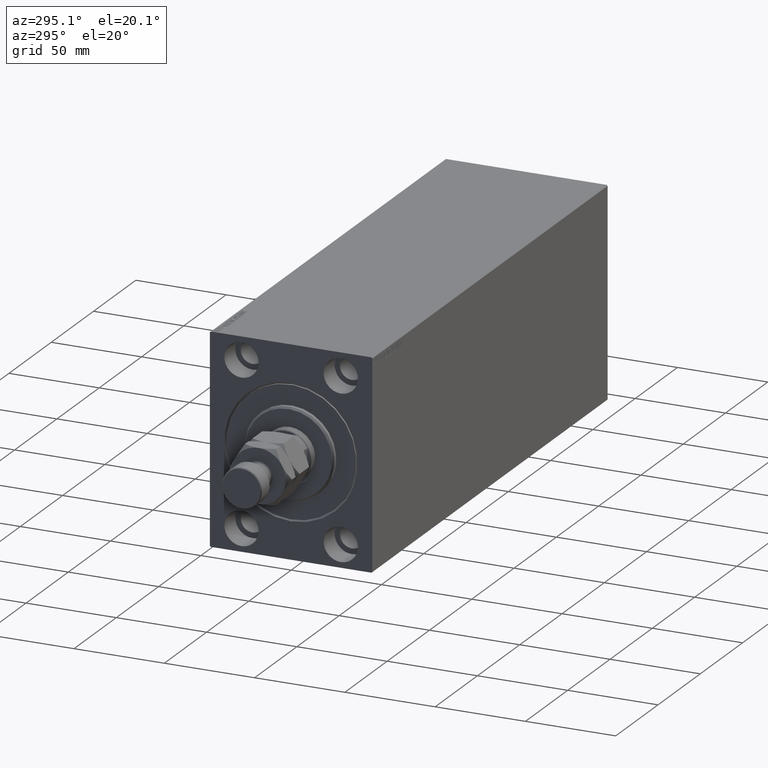
[diagram: clean part render]
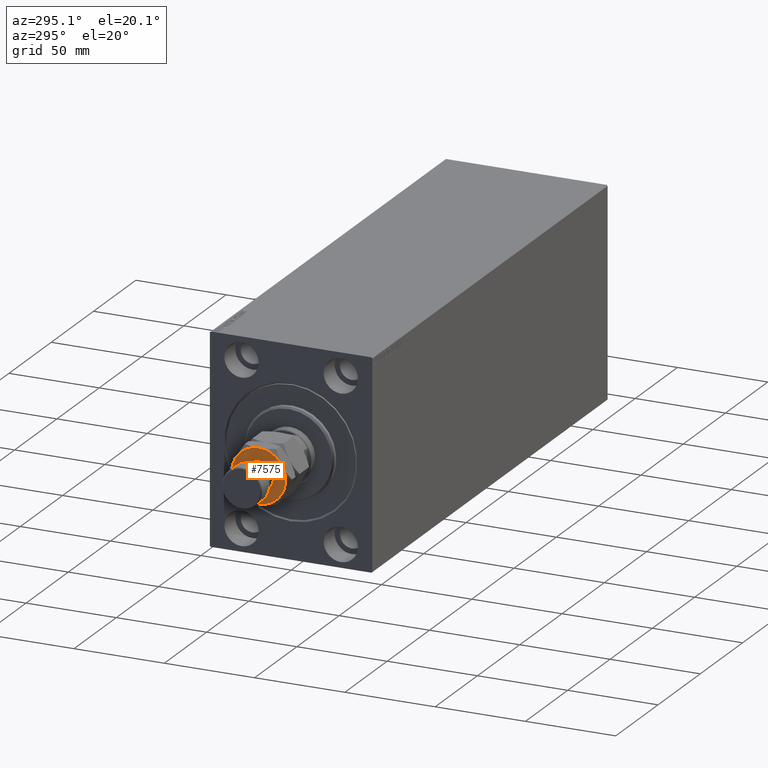
[diagram: same view with one face highlighted and labeled with its STEP entity id]
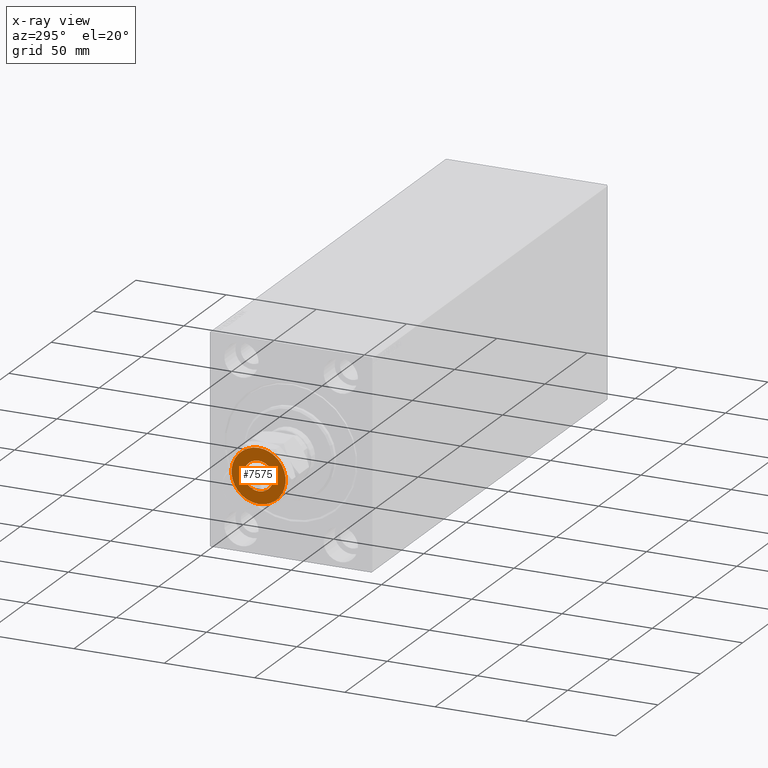
[diagram: x-ray of the same camera — body ghosted, the highlighted face saturated]
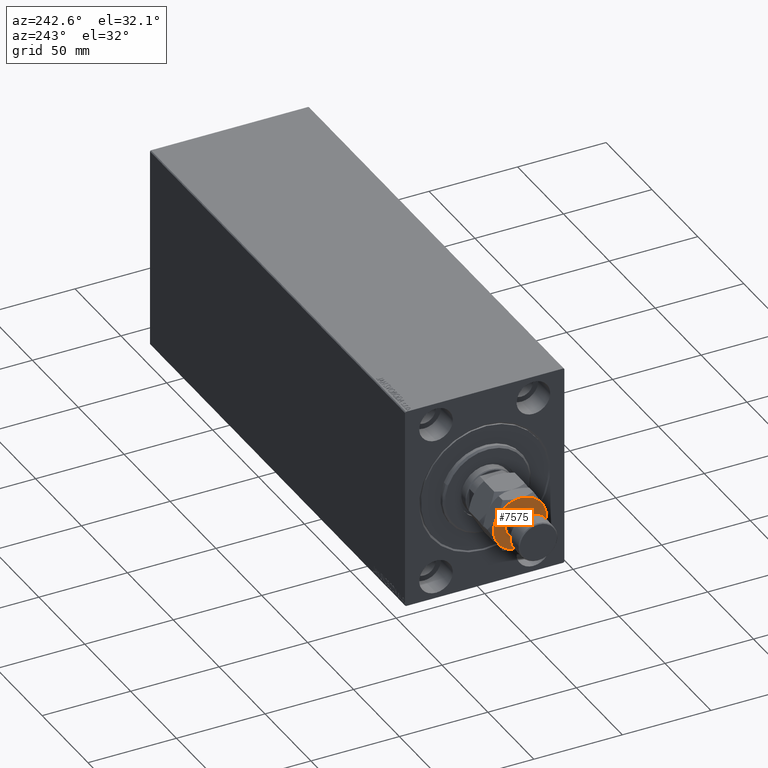
[diagram: same view with one face highlighted and labeled with its STEP entity id]
A machine part, auxiliary view. The second image highlights one B-rep face of the part: STEP entity #7575.
The next image is the same camera in x-ray: the body ghosted, the highlighted face saturated — about 0% of this face is hidden behind the body in this view.
A second angle (auxiliary view) of the same face is appended — the face is thin or edge-on in the first view.
In plain terms, the highlighted planar face has unit normal (-1, 0, 0).
Its self-contained STEP definition (entity closure, byte-faithful):
#321 = CIRCLE ( 'NONE', #20196, 14.99999999999999645 ) ;
#438 = CARTESIAN_POINT ( 'NONE',  ( 0.000000000000000000, 0.000000000000000000, 25.00000000000000000 ) ) ;
#530 = EDGE_LOOP ( 'NONE', ( #23678, #26504 ) ) ;
#1044 = CIRCLE ( 'NONE', #11329, 14.99999999999999645 ) ;
#1254 = VERTEX_POINT ( 'NONE', #42301 ) ;
#1564 = CARTESIAN_POINT ( 'NONE',  ( 0.000000000000000000, 0.000000000000000000, 25.00000000000000000 ) ) ;
#2749 = AXIS2_PLACEMENT_3D ( 'NONE', #32168, #4313, #14687 ) ;
#3465 = CARTESIAN_POINT ( 'NONE',  ( 8.200000000000001066, 0.000000000000000000, 25.00000000000000000 ) ) ;
#3591 = AXIS2_PLACEMENT_3D ( 'NONE', #1564, #29649, #15144 ) ;
#3680 = ORIENTED_EDGE ( 'NONE', *, *, #34946, .T. ) ;
#3728 = EDGE_CURVE ( 'NONE', #31048, #1254, #44014, .T. ) ;
#3746 = EDGE_CURVE ( 'NONE', #1254, #40505, #19794, .T. ) ;
#3958 = DIRECTION ( 'NONE',  ( 1.000000000000000000, 0.000000000000000000, 0.000000000000000000 ) ) ;
#4313 = DIRECTION ( 'NONE',  ( 0.000000000000000000, -0.000000000000000000, 1.000000000000000000 ) ) ;
#5888 = CIRCLE ( 'NONE', #10279, 8.200000000000001066 ) ;
#6221 = VERTEX_POINT ( 'NONE', #3465 ) ;
#7329 = CARTESIAN_POINT ( 'NONE',  ( 0.000000000000000000, 0.000000000000000000, 25.00000000000000000 ) ) ;
#7575 = ADVANCED_FACE ( 'NONE', ( #11935, #39987 ), #22503, .T. ) ;
#8098 = CARTESIAN_POINT ( 'NONE',  ( 0.000000000000000000, 0.000000000000000000, 25.00000000000000000 ) ) ;
#9584 = EDGE_CURVE ( 'NONE', #6221, #30738, #5888, .T. ) ;
#10279 = AXIS2_PLACEMENT_3D ( 'NONE', #21654, #32239, #43041 ) ;
#10771 = DIRECTION ( 'NONE',  ( 0.000000000000000000, -0.000000000000000000, 1.000000000000000000 ) ) ;
#11329 = AXIS2_PLACEMENT_3D ( 'NONE', #8098, #15698, #12242 ) ;
#11546 = CARTESIAN_POINT ( 'NONE',  ( 7.499999999999998224, 12.99038105676657651, 25.00000000000000000 ) ) ;
#11935 = FACE_BOUND ( 'NONE', #530, .T. ) ;
#12242 = DIRECTION ( 'NONE',  ( 1.000000000000000000, 0.000000000000000000, 0.000000000000000000 ) ) ;
#13832 = DIRECTION ( 'NONE',  ( -0.000000000000000000, 0.000000000000000000, -1.000000000000000000 ) ) ;
#14559 = ORIENTED_EDGE ( 'NONE', *, *, #15861, .T. ) ;
#14687 = DIRECTION ( 'NONE',  ( 1.000000000000000000, 0.000000000000000000, 0.000000000000000000 ) ) ;
#14882 = CARTESIAN_POINT ( 'NONE',  ( -7.500000000000000888, -12.99038105676657828, 25.00000000000000000 ) ) ;
#15144 = DIRECTION ( 'NONE',  ( 1.000000000000000000, 0.000000000000000000, -0.000000000000000000 ) ) ;
#15698 = DIRECTION ( 'NONE',  ( 0.000000000000000000, -0.000000000000000000, 1.000000000000000000 ) ) ;
#15861 = EDGE_CURVE ( 'NONE', #21949, #25770, #43127, .T. ) ;
#16111 = AXIS2_PLACEMENT_3D ( 'NONE', #45369, #32495, #32942 ) ;
#16886 = CARTESIAN_POINT ( 'NONE',  ( 7.500000000000001776, -12.99038105676657473, 25.00000000000000000 ) ) ;
#16961 = ORIENTED_EDGE ( 'NONE', *, *, #39672, .T. ) ;
#17075 = AXIS2_PLACEMENT_3D ( 'NONE', #28312, #13832, #42332 ) ;
#17942 = VERTEX_POINT ( 'NONE', #27526 ) ;
#18226 = CARTESIAN_POINT ( 'NONE',  ( 0.000000000000000000, 0.000000000000000000, 25.00000000000000000 ) ) ;
#19794 = CIRCLE ( 'NONE', #16111, 14.99999999999999645 ) ;
#20196 = AXIS2_PLACEMENT_3D ( 'NONE', #438, #42995, #28972 ) ;
#21654 = CARTESIAN_POINT ( 'NONE',  ( 0.000000000000000000, 0.000000000000000000, 25.00000000000000000 ) ) ;
#21949 = VERTEX_POINT ( 'NONE', #40741 ) ;
#22503 = PLANE ( 'NONE',  #3591 ) ;
#23678 = ORIENTED_EDGE ( 'NONE', *, *, #9584, .T. ) ;
#23843 = ORIENTED_EDGE ( 'NONE', *, *, #3728, .T. ) ;
#24377 = DIRECTION ( 'NONE',  ( 1.000000000000000000, 0.000000000000000000, 0.000000000000000000 ) ) ;
#25770 = VERTEX_POINT ( 'NONE', #14882 ) ;
#26504 = ORIENTED_EDGE ( 'NONE', *, *, #33771, .T. ) ;
#27526 = CARTESIAN_POINT ( 'NONE',  ( -7.500000000000000000, 12.99038105676657651, 25.00000000000000000 ) ) ;
#27569 = CARTESIAN_POINT ( 'NONE',  ( -8.200000000000001066, 1.004210375300829674E-15, 25.00000000000000000 ) ) ;
#28312 = CARTESIAN_POINT ( 'NONE',  ( 0.000000000000000000, 0.000000000000000000, 25.00000000000000000 ) ) ;
#28595 = AXIS2_PLACEMENT_3D ( 'NONE', #18226, #35248, #3958 ) ;
#28972 = DIRECTION ( 'NONE',  ( 1.000000000000000000, 0.000000000000000000, 0.000000000000000000 ) ) ;
#29649 = DIRECTION ( 'NONE',  ( 0.000000000000000000, -0.000000000000000000, 1.000000000000000000 ) ) ;
#30053 = EDGE_LOOP ( 'NONE', ( #23843, #43689, #44414, #3680, #14559, #16961 ) ) ;
#30738 = VERTEX_POINT ( 'NONE', #27569 ) ;
#31048 = VERTEX_POINT ( 'NONE', #16886 ) ;
#32168 = CARTESIAN_POINT ( 'NONE',  ( 0.000000000000000000, 0.000000000000000000, 25.00000000000000000 ) ) ;
#32239 = DIRECTION ( 'NONE',  ( -0.000000000000000000, 0.000000000000000000, -1.000000000000000000 ) ) ;
#32495 = DIRECTION ( 'NONE',  ( 0.000000000000000000, 0.000000000000000000, 1.000000000000000000 ) ) ;
#32942 = DIRECTION ( 'NONE',  ( 1.000000000000000000, 0.000000000000000000, 0.000000000000000000 ) ) ;
#33771 = EDGE_CURVE ( 'NONE', #30738, #6221, #36899, .T. ) ;
#34946 = EDGE_CURVE ( 'NONE', #17942, #21949, #36158, .T. ) ;
#35248 = DIRECTION ( 'NONE',  ( 0.000000000000000000, -0.000000000000000000, 1.000000000000000000 ) ) ;
#36158 = CIRCLE ( 'NONE', #40611, 14.99999999999999645 ) ;
#36899 = CIRCLE ( 'NONE', #17075, 8.200000000000001066 ) ;
#39672 = EDGE_CURVE ( 'NONE', #25770, #31048, #1044, .T. ) ;
#39987 = FACE_OUTER_BOUND ( 'NONE', #30053, .T. ) ;
#40505 = VERTEX_POINT ( 'NONE', #11546 ) ;
#40611 = AXIS2_PLACEMENT_3D ( 'NONE', #7329, #10771, #24377 ) ;
#40741 = CARTESIAN_POINT ( 'NONE',  ( -14.99999999999999645, 0.000000000000000000, 25.00000000000000000 ) ) ;
#41571 = EDGE_CURVE ( 'NONE', #40505, #17942, #321, .T. ) ;
#42301 = CARTESIAN_POINT ( 'NONE',  ( 14.99999999999999645, 1.502314598737159426E-15, 25.00000000000000000 ) ) ;
#42332 = DIRECTION ( 'NONE',  ( 1.000000000000000000, 0.000000000000000000, 0.000000000000000000 ) ) ;
#42995 = DIRECTION ( 'NONE',  ( 0.000000000000000000, -0.000000000000000000, 1.000000000000000000 ) ) ;
#43041 = DIRECTION ( 'NONE',  ( 1.000000000000000000, 0.000000000000000000, 0.000000000000000000 ) ) ;
#43127 = CIRCLE ( 'NONE', #2749, 14.99999999999999645 ) ;
#43689 = ORIENTED_EDGE ( 'NONE', *, *, #3746, .T. ) ;
#44014 = CIRCLE ( 'NONE', #28595, 14.99999999999999645 ) ;
#44414 = ORIENTED_EDGE ( 'NONE', *, *, #41571, .T. ) ;
#45369 = CARTESIAN_POINT ( 'NONE',  ( 0.000000000000000000, 0.000000000000000000, 25.00000000000000000 ) ) ;